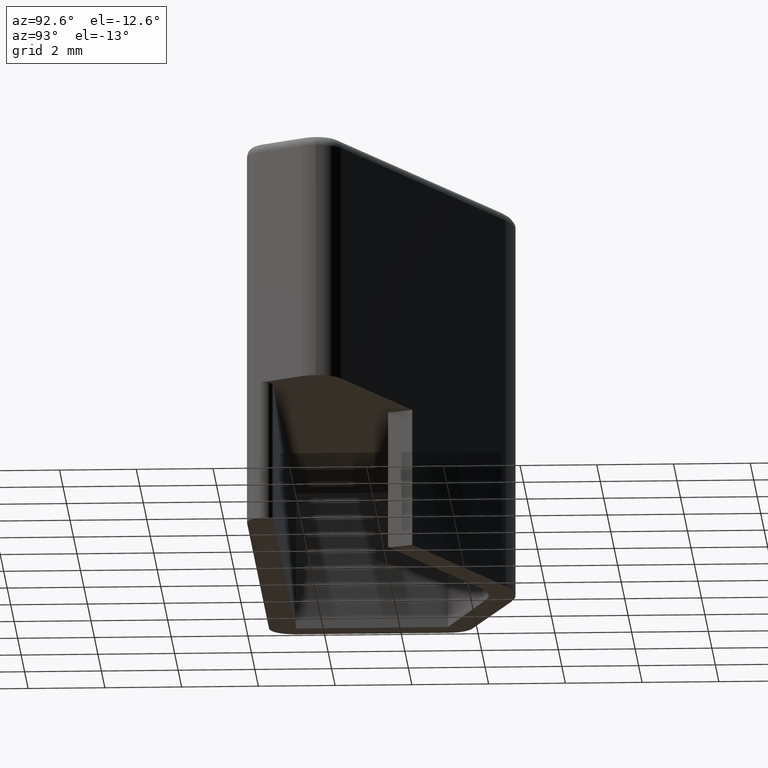
[diagram: clean part render]
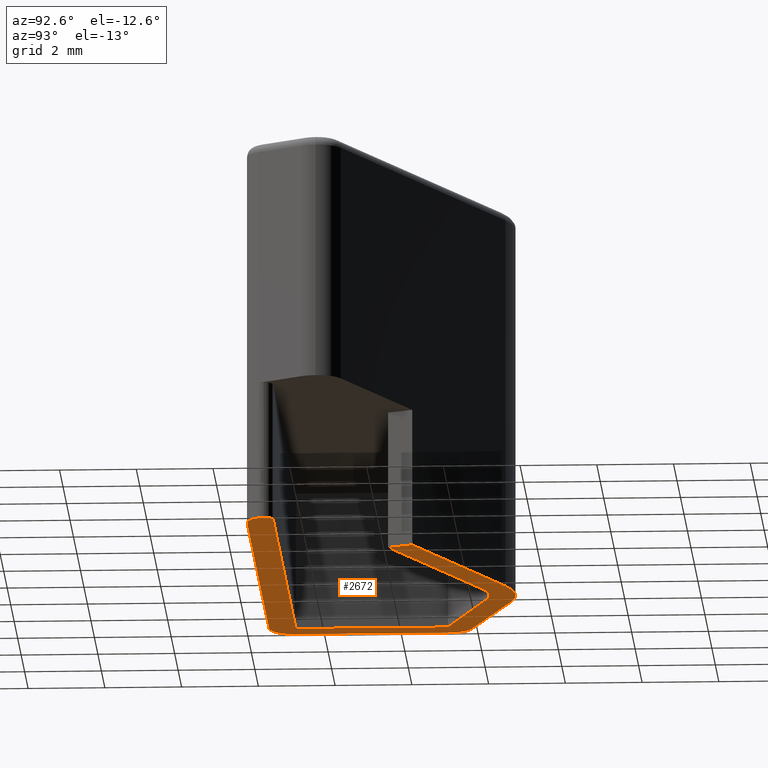
[diagram: same view with one face highlighted and labeled with its STEP entity id]
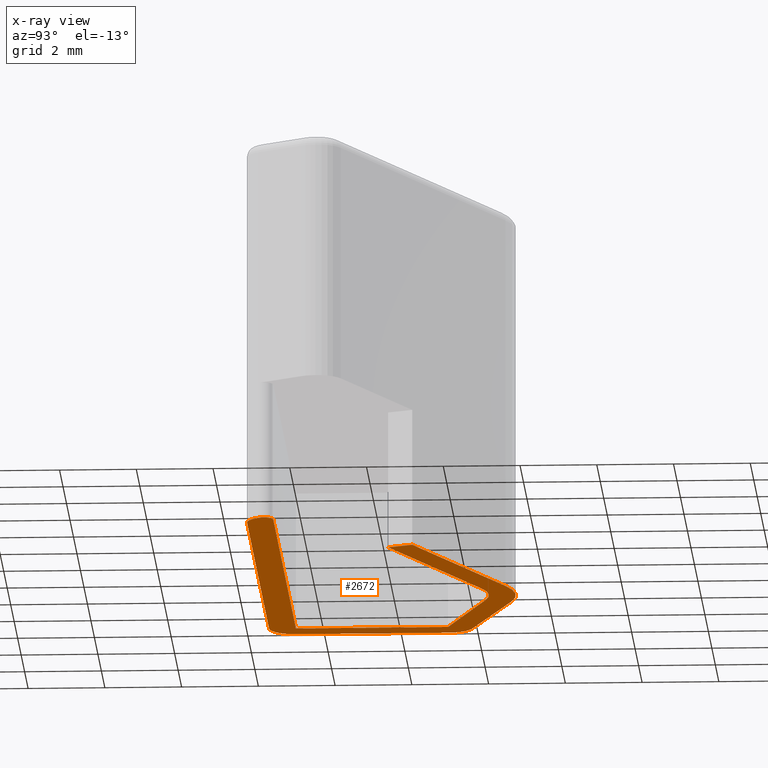
[diagram: x-ray of the same camera — body ghosted, the highlighted face saturated]
A machine part, auxiliary view. The second image highlights one B-rep face of the part: STEP entity #2672.
The next image is the same camera in x-ray: the body ghosted, the highlighted face saturated — about 0% of this face is hidden behind the body in this view.
In plain terms, the highlighted planar face has unit normal (0, 0, -1).
Its self-contained STEP definition (entity closure, byte-faithful):
#64 = DIRECTION ( 'NONE',  ( 1.000000000000000000, 0.0000000000000000000, 0.0000000000000000000 ) ) ;
#79 = CARTESIAN_POINT ( 'NONE',  ( 230.5921777548880100, 142.9921292735930100, 30.90000000000000200 ) ) ;
#84 = DIRECTION ( 'NONE',  ( 0.0000000000000000000, 0.0000000000000000000, -1.000000000000000000 ) ) ;
#97 = LINE ( 'NONE', #100, #2130 ) ;
#100 = CARTESIAN_POINT ( 'NONE',  ( 217.3114746898324900, 147.8106431627630000, 30.90000000000000200 ) ) ;
#101 = DIRECTION ( 'NONE',  ( 0.9386480401766692500, 0.3448765817977466100, 0.0000000000000000000 ) ) ;
#121 = DIRECTION ( 'NONE',  ( -0.9426259903181397600, -0.3338506288398244100, 0.0000000000000000000 ) ) ;
#149 = LINE ( 'NONE', #158, #2183 ) ;
#158 = CARTESIAN_POINT ( 'NONE',  ( 220.7519571651790200, 148.3288546316620100, 30.90000000000000200 ) ) ;
#174 = LINE ( 'NONE', #188, #2221 ) ;
#176 = DIRECTION ( 'NONE',  ( 0.9156028679838998900, -0.4020838073581889400, 0.0000000000000000000 ) ) ;
#179 = CARTESIAN_POINT ( 'NONE',  ( 216.8528882970909700, 143.2321278490894100, 30.90000000000000200 ) ) ;
#183 = LINE ( 'NONE', #179, #2132 ) ;
#188 = CARTESIAN_POINT ( 'NONE',  ( 222.3823972352885200, 148.9103094367096100, 30.90000000000000200 ) ) ;
#193 = DIRECTION ( 'NONE',  ( -1.000000000000000000, 0.0000000000000000000, 0.0000000000000000000 ) ) ;
#194 = DIRECTION ( 'NONE',  ( 0.0000000000000000000, 0.0000000000000000000, -1.000000000000000000 ) ) ;
#202 = CARTESIAN_POINT ( 'NONE',  ( 217.5528882970909900, 143.2321278490894100, 30.90000000000000200 ) ) ;
#203 = DIRECTION ( 'NONE',  ( 0.0000000000000000000, 1.000000000000000000, 0.0000000000000000000 ) ) ;
#227 = CARTESIAN_POINT ( 'NONE',  ( 230.5921777548880100, 142.9921292735930100, 30.90000000000000200 ) ) ;
#228 = DIRECTION ( 'NONE',  ( 1.000000000000000000, 0.0000000000000000000, 0.0000000000000000000 ) ) ;
#234 = DIRECTION ( 'NONE',  ( 0.0000000000000000000, -1.000000000000000000, 0.0000000000000000000 ) ) ;
#236 = DIRECTION ( 'NONE',  ( 0.0000000000000000000, 0.0000000000000000000, -1.000000000000000000 ) ) ;
#247 = CARTESIAN_POINT ( 'NONE',  ( 217.5528882970909900, 147.1958377572252100, 30.90000000000000200 ) ) ;
#250 = LINE ( 'NONE', #247, #2250 ) ;
#256 = DIRECTION ( 'NONE',  ( 0.0000000000000000000, 0.0000000000000000000, -1.000000000000000000 ) ) ;
#261 = DIRECTION ( 'NONE',  ( -1.000000000000000000, 0.0000000000000000000, 0.0000000000000000000 ) ) ;
#266 = LINE ( 'NONE', #267, #2229 ) ;
#267 = CARTESIAN_POINT ( 'NONE',  ( 217.5528882970909900, 143.2321278490894100, 30.90000000000000200 ) ) ;
#273 = DIRECTION ( 'NONE',  ( 0.0000000000000000000, 0.0000000000000000000, -1.000000000000000000 ) ) ;
#288 = CARTESIAN_POINT ( 'NONE',  ( 217.5528882970909900, 147.1535895346392000, 30.90000000000000200 ) ) ;
#293 = DIRECTION ( 'NONE',  ( 1.000000000000000000, -4.257492091195815400E-015, 0.0000000000000000000 ) ) ;
#296 = CARTESIAN_POINT ( 'NONE',  ( 221.3528882970910000, 146.6321278490892200, 30.90000000000000200 ) ) ;
#300 = DIRECTION ( 'NONE',  ( -1.000000000000000000, 0.0000000000000000000, 0.0000000000000000000 ) ) ;
#310 = DIRECTION ( 'NONE',  ( -0.4020838073582090300, -0.9156028679838911200, 0.0000000000000000000 ) ) ;
#316 = LINE ( 'NONE', #327, #2219 ) ;
#327 = CARTESIAN_POINT ( 'NONE',  ( 227.1093188537675200, 146.0700179700759800, 30.90000000000000200 ) ) ;
#422 = LINE ( 'NONE', #424, #2265 ) ;
#424 = CARTESIAN_POINT ( 'NONE',  ( 227.1093188537675200, 146.0700179700759800, 30.90000000000000200 ) ) ;
#428 = DIRECTION ( 'NONE',  ( -0.9156028679838994500, 0.4020838073581901000, 0.0000000000000000000 ) ) ;
#593 = DIRECTION ( 'NONE',  ( -1.000000000000000000, 0.0000000000000000000, 0.0000000000000000000 ) ) ;
#601 = CARTESIAN_POINT ( 'NONE',  ( 230.1989225198495000, 143.2321278490894100, 30.90000000000000200 ) ) ;
#602 = DIRECTION ( 'NONE',  ( 0.0000000000000000000, 0.0000000000000000000, -1.000000000000000000 ) ) ;
#623 = DIRECTION ( 'NONE',  ( 0.0000000000000000000, 0.0000000000000000000, 1.000000000000000000 ) ) ;
#629 = CARTESIAN_POINT ( 'NONE',  ( 221.3528882970910000, 146.6321278490892200, 30.90000000000000200 ) ) ;
#634 = LINE ( 'NONE', #637, #2252 ) ;
#637 = CARTESIAN_POINT ( 'NONE',  ( 230.1989225198495000, 142.5321278490893900, 30.90000000000000200 ) ) ;
#638 = DIRECTION ( 'NONE',  ( -1.000000000000000000, 0.0000000000000000000, 0.0000000000000000000 ) ) ;
#661 = DIRECTION ( 'NONE',  ( -1.000000000000000000, 0.0000000000000000000, 0.0000000000000000000 ) ) ;
#1058 = DIRECTION ( 'NONE',  ( -1.000000000000000000, 0.0000000000000000000, 0.0000000000000000000 ) ) ;
#1059 = CARTESIAN_POINT ( 'NONE',  ( 217.5528882970909900, 143.2321278490894100, 30.90000000000000200 ) ) ;
#1065 = DIRECTION ( 'NONE',  ( 0.0000000000000000000, 0.0000000000000000000, -1.000000000000000000 ) ) ;
#1070 = FACE_OUTER_BOUND ( 'NONE', #1798, .T. ) ;
#1071 = PLANE ( 'NONE',  #2411 ) ;
#1167 = ORIENTED_EDGE ( 'NONE', *, *, #2473, .T. ) ;
#1171 = ORIENTED_EDGE ( 'NONE', *, *, #2510, .T. ) ;
#1194 = ORIENTED_EDGE ( 'NONE', *, *, #2480, .T. ) ;
#1196 = ORIENTED_EDGE ( 'NONE', *, *, #2588, .T. ) ;
#1200 = ORIENTED_EDGE ( 'NONE', *, *, #2535, .T. ) ;
#1210 = ORIENTED_EDGE ( 'NONE', *, *, #2494, .T. ) ;
#1220 = ORIENTED_EDGE ( 'NONE', *, *, #2528, .T. ) ;
#1222 = ORIENTED_EDGE ( 'NONE', *, *, #2595, .T. ) ;
#1223 = ORIENTED_EDGE ( 'NONE', *, *, #2486, .T. ) ;
#1225 = ORIENTED_EDGE ( 'NONE', *, *, #2598, .T. ) ;
#1226 = ORIENTED_EDGE ( 'NONE', *, *, #2507, .T. ) ;
#1234 = ORIENTED_EDGE ( 'NONE', *, *, #2523, .T. ) ;
#1241 = ORIENTED_EDGE ( 'NONE', *, *, #2495, .T. ) ;
#1245 = ORIENTED_EDGE ( 'NONE', *, *, #2465, .T. ) ;
#1246 = ORIENTED_EDGE ( 'NONE', *, *, #2569, .T. ) ;
#1254 = ORIENTED_EDGE ( 'NONE', *, *, #2520, .T. ) ;
#1451 = CARTESIAN_POINT ( 'NONE',  ( 220.4906968425965200, 148.9787479495310000, 30.90000000000000200 ) ) ;
#1453 = CARTESIAN_POINT ( 'NONE',  ( 216.8528882970909700, 143.2321278490894100, 30.90000000000000200 ) ) ;
#1474 = CARTESIAN_POINT ( 'NONE',  ( 216.8528882970909700, 147.1535895346392000, 30.90000000000000200 ) ) ;
#1475 = CARTESIAN_POINT ( 'NONE',  ( 217.5528882970909900, 142.5321278490893900, 30.90000000000000200 ) ) ;
#1479 = CARTESIAN_POINT ( 'NONE',  ( 222.3823972352885200, 148.9103094367096100, 30.90000000000000200 ) ) ;
#1482 = CARTESIAN_POINT ( 'NONE',  ( 230.8321777548880200, 142.9921292735930100, 30.90000000000000200 ) ) ;
#1487 = CARTESIAN_POINT ( 'NONE',  ( 230.7843245237970100, 142.8483251735200100, 30.90000000000000200 ) ) ;
#1501 = CARTESIAN_POINT ( 'NONE',  ( 227.3907615848669900, 146.7109036935299900, 30.90000000000000200 ) ) ;
#1505 = CARTESIAN_POINT ( 'NONE',  ( 217.3114746898324900, 147.8106431627630000, 30.90000000000000200 ) ) ;
#1516 = CARTESIAN_POINT ( 'NONE',  ( 217.5528882970909900, 147.1958377572252100, 30.90000000000000200 ) ) ;
#1524 = CARTESIAN_POINT ( 'NONE',  ( 217.5528882970909900, 143.2321278490894100, 30.90000000000000200 ) ) ;
#1541 = CARTESIAN_POINT ( 'NONE',  ( 222.0941347325929800, 148.2724185921760000, 30.90000000000000200 ) ) ;
#1550 = CARTESIAN_POINT ( 'NONE',  ( 230.1989225198495000, 142.5321278490893900, 30.90000000000000200 ) ) ;
#1589 = CARTESIAN_POINT ( 'NONE',  ( 220.7519571651790200, 148.3288546316620100, 30.90000000000000200 ) ) ;
#1611 = CARTESIAN_POINT ( 'NONE',  ( 230.5913508572564900, 143.2321278490894100, 30.90000000000000200 ) ) ;
#1618 = CARTESIAN_POINT ( 'NONE',  ( 227.1093188537675200, 146.0700179700759800, 30.90000000000000200 ) ) ;
#1798 = EDGE_LOOP ( 'NONE', ( #1241, #1223, #1254, #1167, #1220, #1210, #1200, #1246, #1222, #1194, #1226, #1234, #1171, #1245, #1196, #1225 ) ) ;
#1894 = VERTEX_POINT ( 'NONE', #1487 ) ;
#1901 = VERTEX_POINT ( 'NONE', #1474 ) ;
#1903 = VERTEX_POINT ( 'NONE', #1475 ) ;
#1906 = VERTEX_POINT ( 'NONE', #1479 ) ;
#1909 = VERTEX_POINT ( 'NONE', #1501 ) ;
#1911 = VERTEX_POINT ( 'NONE', #1505 ) ;
#1921 = VERTEX_POINT ( 'NONE', #1482 ) ;
#1927 = VERTEX_POINT ( 'NONE', #1451 ) ;
#1929 = VERTEX_POINT ( 'NONE', #1453 ) ;
#1936 = VERTEX_POINT ( 'NONE', #1524 ) ;
#1958 = VERTEX_POINT ( 'NONE', #1550 ) ;
#1973 = VERTEX_POINT ( 'NONE', #1516 ) ;
#1986 = VERTEX_POINT ( 'NONE', #1541 ) ;
#1998 = VERTEX_POINT ( 'NONE', #1618 ) ;
#1999 = VERTEX_POINT ( 'NONE', #1589 ) ;
#2002 = VERTEX_POINT ( 'NONE', #1611 ) ;
#2127 = CIRCLE ( 'NONE', #2161, 0.2399999999999902200 ) ;
#2130 = VECTOR ( 'NONE', #101, 1000.000000000000200 ) ;
#2132 = VECTOR ( 'NONE', #203, 1000.000000000000000 ) ;
#2161 = AXIS2_PLACEMENT_3D ( 'NONE', #79, #84, #64 ) ;
#2183 = VECTOR ( 'NONE', #121, 1000.000000000000000 ) ;
#2200 = CIRCLE ( 'NONE', #2230, 2.500000000000252200 ) ;
#2219 = VECTOR ( 'NONE', #310, 999.9999999999998900 ) ;
#2221 = VECTOR ( 'NONE', #176, 1000.000000000000100 ) ;
#2226 = CIRCLE ( 'NONE', #2227, 0.2399999999999902200 ) ;
#2227 = AXIS2_PLACEMENT_3D ( 'NONE', #227, #236, #228 ) ;
#2229 = VECTOR ( 'NONE', #293, 1000.000000000000000 ) ;
#2230 = AXIS2_PLACEMENT_3D ( 'NONE', #296, #256, #261 ) ;
#2231 = CIRCLE ( 'NONE', #2244, 0.7000000000000061700 ) ;
#2240 = AXIS2_PLACEMENT_3D ( 'NONE', #288, #273, #300 ) ;
#2241 = CIRCLE ( 'NONE', #2240, 0.7000000000000061700 ) ;
#2244 = AXIS2_PLACEMENT_3D ( 'NONE', #202, #194, #193 ) ;
#2250 = VECTOR ( 'NONE', #234, 1000.000000000000000 ) ;
#2252 = VECTOR ( 'NONE', #638, 1000.000000000000000 ) ;
#2263 = CIRCLE ( 'NONE', #2289, 0.7000000000000061700 ) ;
#2265 = VECTOR ( 'NONE', #428, 1000.000000000000100 ) ;
#2274 = CIRCLE ( 'NONE', #2287, 1.800000000000273600 ) ;
#2287 = AXIS2_PLACEMENT_3D ( 'NONE', #629, #623, #661 ) ;
#2289 = AXIS2_PLACEMENT_3D ( 'NONE', #601, #602, #593 ) ;
#2411 = AXIS2_PLACEMENT_3D ( 'NONE', #1059, #1065, #1058 ) ;
#2465 = EDGE_CURVE ( 'NONE', #1921, #1894, #2127, .T. ) ;
#2473 = EDGE_CURVE ( 'NONE', #1911, #1927, #97, .T. ) ;
#2480 = EDGE_CURVE ( 'NONE', #1999, #1973, #149, .T. ) ;
#2486 = EDGE_CURVE ( 'NONE', #1929, #1901, #183, .T. ) ;
#2494 = EDGE_CURVE ( 'NONE', #1906, #1909, #174, .T. ) ;
#2495 = EDGE_CURVE ( 'NONE', #1903, #1929, #2231, .T. ) ;
#2507 = EDGE_CURVE ( 'NONE', #1973, #1936, #250, .T. ) ;
#2510 = EDGE_CURVE ( 'NONE', #2002, #1921, #2226, .T. ) ;
#2520 = EDGE_CURVE ( 'NONE', #1901, #1911, #2241, .T. ) ;
#2523 = EDGE_CURVE ( 'NONE', #1936, #2002, #266, .T. ) ;
#2528 = EDGE_CURVE ( 'NONE', #1927, #1906, #2200, .T. ) ;
#2535 = EDGE_CURVE ( 'NONE', #1909, #1998, #316, .T. ) ;
#2569 = EDGE_CURVE ( 'NONE', #1998, #1986, #422, .T. ) ;
#2588 = EDGE_CURVE ( 'NONE', #1894, #1958, #2263, .T. ) ;
#2595 = EDGE_CURVE ( 'NONE', #1986, #1999, #2274, .T. ) ;
#2598 = EDGE_CURVE ( 'NONE', #1958, #1903, #634, .T. ) ;
#2672 = ADVANCED_FACE ( 'NONE', ( #1070 ), #1071, .T. ) ;